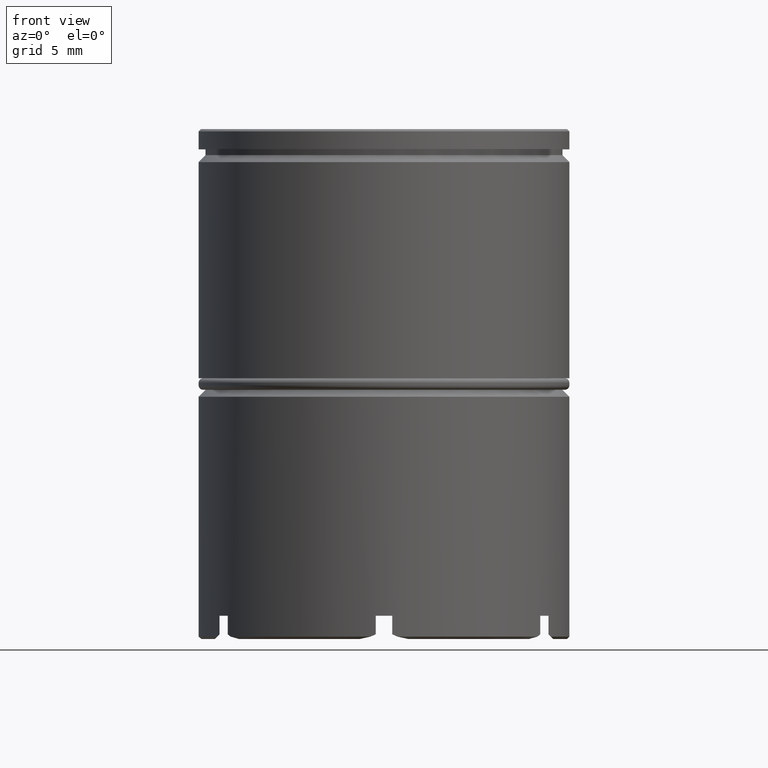
[diagram: clean part render]
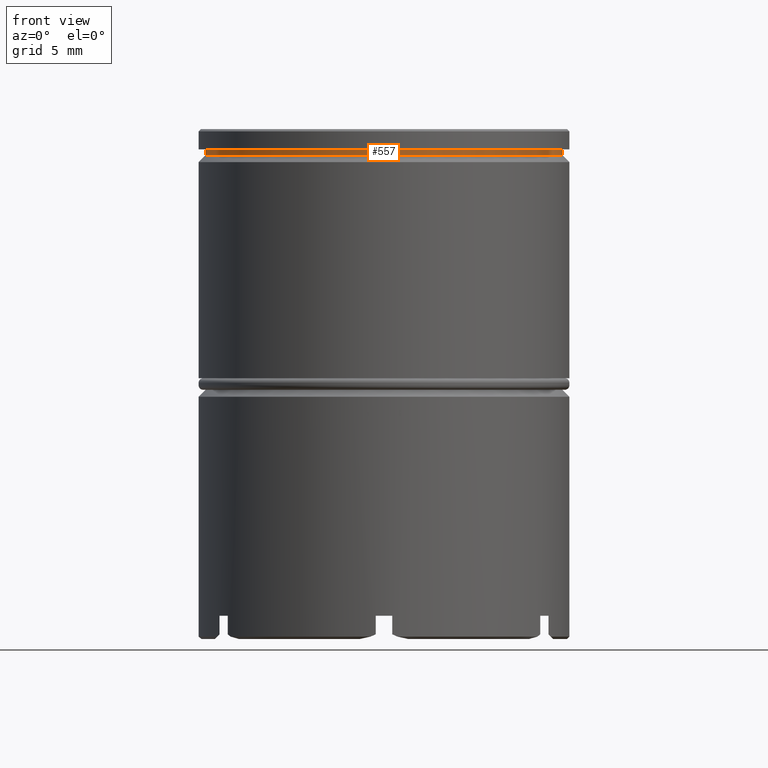
[diagram: same view with one face highlighted and labeled with its STEP entity id]
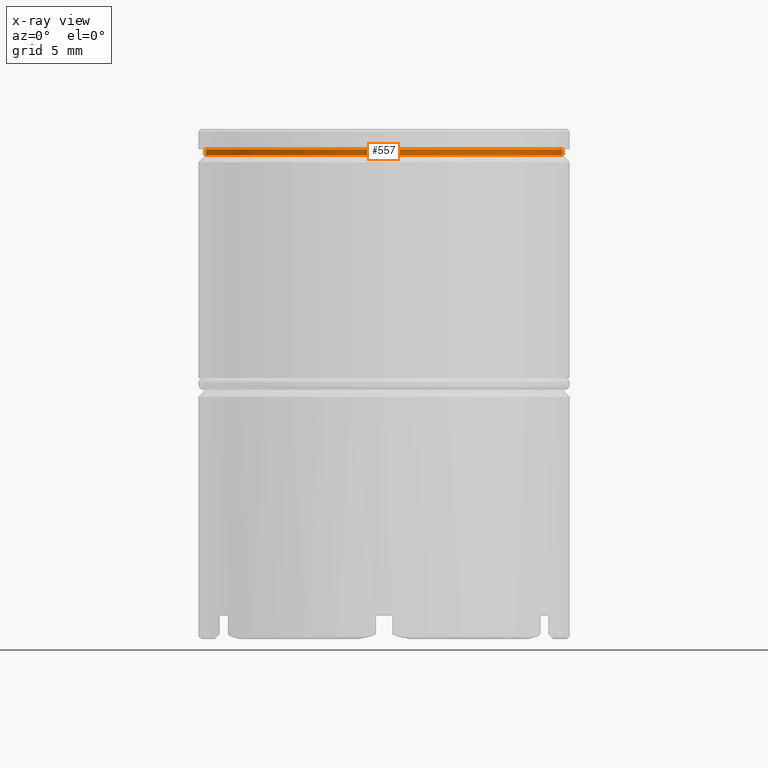
[diagram: x-ray of the same camera — body ghosted, the highlighted face saturated]
A machine part, front view. The second image highlights one B-rep face of the part: STEP entity #557.
The next image is the same camera in x-ray: the body ghosted, the highlighted face saturated — about 0% of this face is hidden behind the body in this view.
In plain terms, the highlighted cylindrical surface (partial cylindrical patch) has radius 7.7 mm, axis along (-0, -0, 1).
Its self-contained STEP definition (entity closure, byte-faithful):
#63 = CYLINDRICAL_SURFACE ( 'NONE', #1108, 7.700000000000000178 ) ;
#66 = CARTESIAN_POINT ( 'NONE',  ( 7.700000000000000178, 0.000000000000000000, 0.000000000000000000 ) ) ;
#85 = LINE ( 'NONE', #66, #102 ) ;
#102 = VECTOR ( 'NONE', #944, 1000.000000000000000 ) ;
#103 = EDGE_CURVE ( 'NONE', #800, #116, #1313, .T. ) ;
#116 = VERTEX_POINT ( 'NONE', #823 ) ;
#152 = AXIS2_PLACEMENT_3D ( 'NONE', #228, #966, #1480 ) ;
#228 = CARTESIAN_POINT ( 'NONE',  ( 0.000000000000000000, 0.000000000000000000, -0.8749999999999998890 ) ) ;
#260 = VERTEX_POINT ( 'NONE', #353 ) ;
#263 = EDGE_CURVE ( 'NONE', #260, #116, #85, .T. ) ;
#321 = DIRECTION ( 'NONE',  ( 1.000000000000000000, 0.000000000000000000, 0.000000000000000000 ) ) ;
#340 = EDGE_CURVE ( 'NONE', #1408, #260, #1368, .T. ) ;
#353 = CARTESIAN_POINT ( 'NONE',  ( 7.700000000000000178, 0.000000000000000000, -1.125000000000000222 ) ) ;
#369 = EDGE_LOOP ( 'NONE', ( #759, #1556, #768, #1576 ) ) ;
#557 = ADVANCED_FACE ( 'NONE', ( #796 ), #63, .T. ) ;
#626 = EDGE_CURVE ( 'NONE', #1408, #800, #1081, .T. ) ;
#685 = DIRECTION ( 'NONE',  ( -0.000000000000000000, -0.000000000000000000, 1.000000000000000000 ) ) ;
#759 = ORIENTED_EDGE ( 'NONE', *, *, #626, .F. ) ;
#768 = ORIENTED_EDGE ( 'NONE', *, *, #263, .T. ) ;
#796 = FACE_OUTER_BOUND ( 'NONE', #369, .T. ) ;
#800 = VERTEX_POINT ( 'NONE', #1266 ) ;
#823 = CARTESIAN_POINT ( 'NONE',  ( 7.700000000000000178, 0.000000000000000000, -0.8749999999999998890 ) ) ;
#824 = CARTESIAN_POINT ( 'NONE',  ( -7.700000000000000178, 9.429780353434619030E-16, -1.125000000000000222 ) ) ;
#825 = CARTESIAN_POINT ( 'NONE',  ( 0.000000000000000000, 0.000000000000000000, -1.125000000000000222 ) ) ;
#940 = DIRECTION ( 'NONE',  ( -0.000000000000000000, -0.000000000000000000, 1.000000000000000000 ) ) ;
#944 = DIRECTION ( 'NONE',  ( -0.000000000000000000, -0.000000000000000000, 1.000000000000000000 ) ) ;
#966 = DIRECTION ( 'NONE',  ( -0.000000000000000000, -0.000000000000000000, 1.000000000000000000 ) ) ;
#1081 = LINE ( 'NONE', #1176, #1237 ) ;
#1108 = AXIS2_PLACEMENT_3D ( 'NONE', #1202, #940, #321 ) ;
#1176 = CARTESIAN_POINT ( 'NONE',  ( -7.700000000000000178, 9.429780353434619030E-16, 0.000000000000000000 ) ) ;
#1198 = DIRECTION ( 'NONE',  ( -0.000000000000000000, -0.000000000000000000, 1.000000000000000000 ) ) ;
#1202 = CARTESIAN_POINT ( 'NONE',  ( 0.000000000000000000, 0.000000000000000000, 0.000000000000000000 ) ) ;
#1237 = VECTOR ( 'NONE', #685, 1000.000000000000000 ) ;
#1266 = CARTESIAN_POINT ( 'NONE',  ( -7.700000000000000178, 9.429780353434619030E-16, -0.8749999999999998890 ) ) ;
#1313 = CIRCLE ( 'NONE', #152, 7.700000000000000178 ) ;
#1330 = DIRECTION ( 'NONE',  ( 1.000000000000000000, 0.000000000000000000, 0.000000000000000000 ) ) ;
#1368 = CIRCLE ( 'NONE', #1500, 7.700000000000000178 ) ;
#1408 = VERTEX_POINT ( 'NONE', #824 ) ;
#1480 = DIRECTION ( 'NONE',  ( 1.000000000000000000, 0.000000000000000000, 0.000000000000000000 ) ) ;
#1500 = AXIS2_PLACEMENT_3D ( 'NONE', #825, #1198, #1330 ) ;
#1556 = ORIENTED_EDGE ( 'NONE', *, *, #340, .T. ) ;
#1576 = ORIENTED_EDGE ( 'NONE', *, *, #103, .F. ) ;